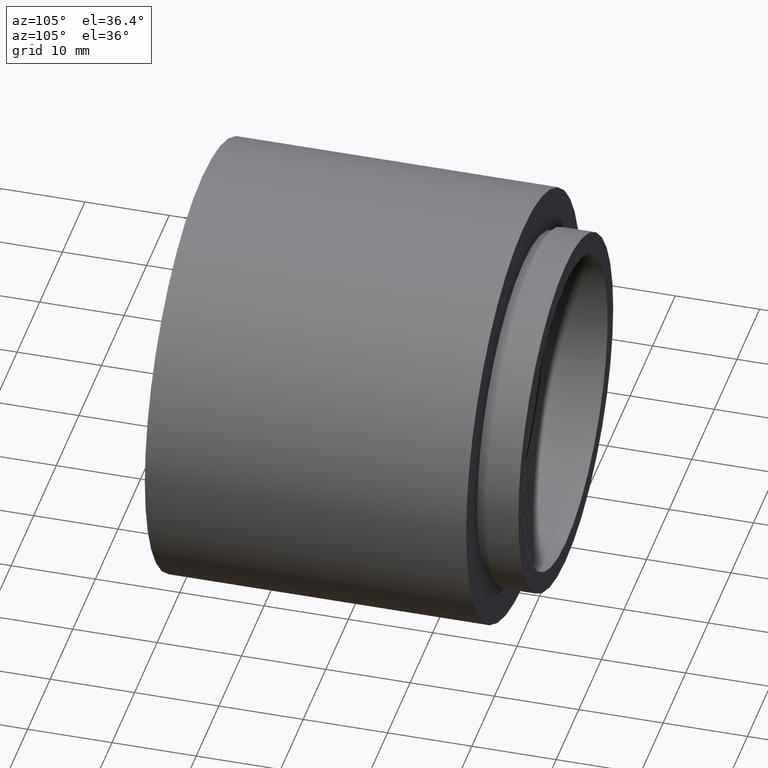
[diagram: clean part render]
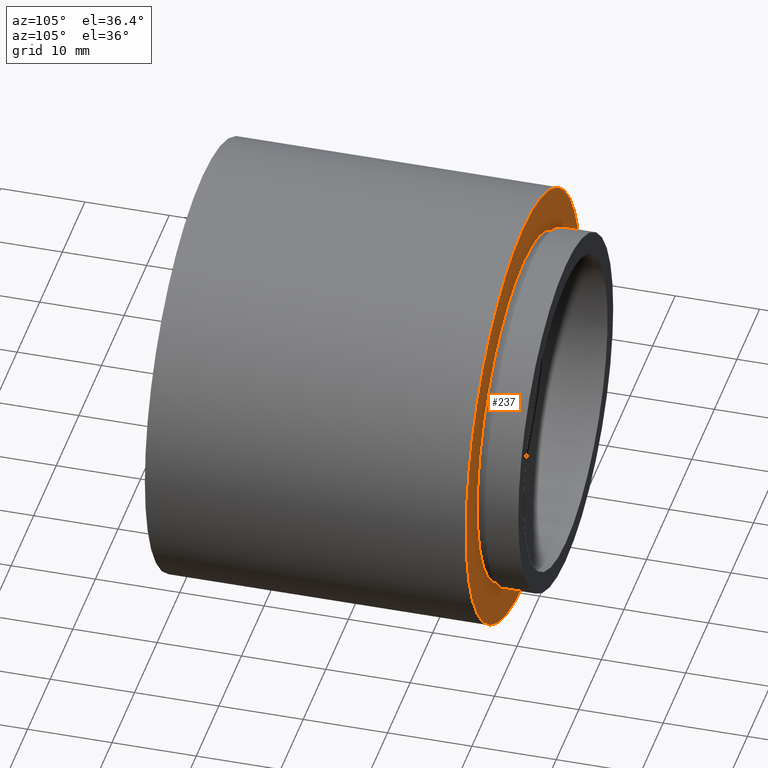
[diagram: same view with one face highlighted and labeled with its STEP entity id]
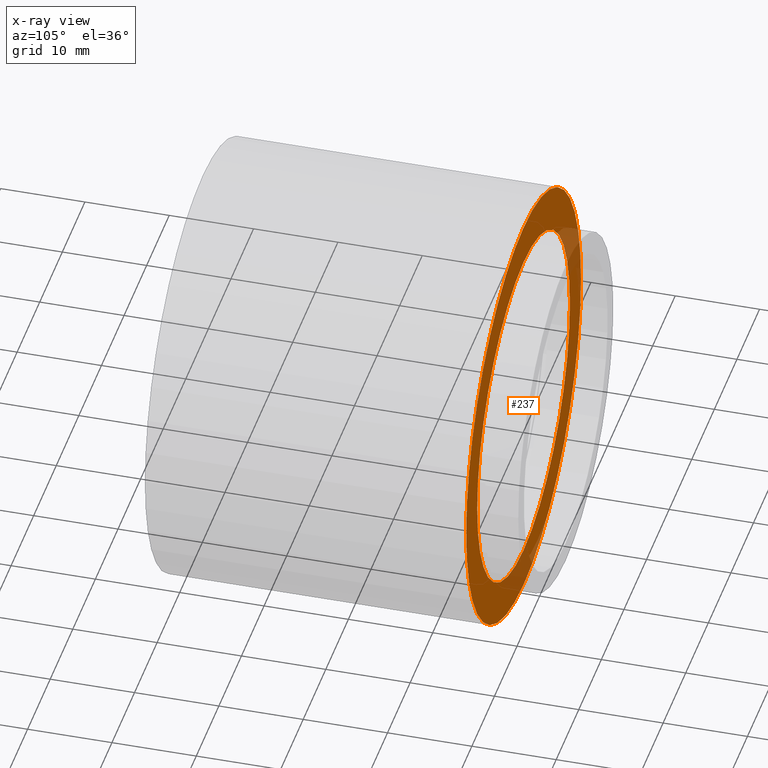
[diagram: x-ray of the same camera — body ghosted, the highlighted face saturated]
A machine part, auxiliary view. The second image highlights one B-rep face of the part: STEP entity #237.
The next image is the same camera in x-ray: the body ghosted, the highlighted face saturated — about 13% of this face is hidden behind the body in this view.
In plain terms, the highlighted planar face has unit normal (0, -1, 0).
Its self-contained STEP definition (entity closure, byte-faithful):
#26 = AXIS2_PLACEMENT_3D ( 'NONE', #496, #195, #548 ) ;
#42 = ORIENTED_EDGE ( 'NONE', *, *, #51, .T. ) ;
#48 = VERTEX_POINT ( 'NONE', #409 ) ;
#51 = EDGE_CURVE ( 'NONE', #517, #412, #57, .T. ) ;
#55 = ORIENTED_EDGE ( 'NONE', *, *, #227, .F. ) ;
#57 = CIRCLE ( 'NONE', #290, 25.40000000000001300 ) ;
#59 = CARTESIAN_POINT ( 'NONE',  ( 0.0000000000000000000, 38.09999999999998000, 0.0000000000000000000 ) ) ;
#78 = DIRECTION ( 'NONE',  ( 0.0000000000000000000, 0.0000000000000000000, 1.000000000000000000 ) ) ;
#107 = CARTESIAN_POINT ( 'NONE',  ( 20.50000000000001400, 38.09999999999998000, 0.0000000000000000000 ) ) ;
#110 = VERTEX_POINT ( 'NONE', #473 ) ;
#112 = CARTESIAN_POINT ( 'NONE',  ( 0.0000000000000000000, 38.09999999999998000, 25.40000000000001300 ) ) ;
#141 = CARTESIAN_POINT ( 'NONE',  ( 0.0000000000000000000, 38.09999999999998000, 0.0000000000000000000 ) ) ;
#153 = ORIENTED_EDGE ( 'NONE', *, *, #327, .F. ) ;
#195 = DIRECTION ( 'NONE',  ( -0.0000000000000000000, 1.000000000000000000, -0.0000000000000000000 ) ) ;
#227 = EDGE_CURVE ( 'NONE', #48, #110, #397, .T. ) ;
#228 = DIRECTION ( 'NONE',  ( -0.0000000000000000000, 1.000000000000000000, -0.0000000000000000000 ) ) ;
#237 = ADVANCED_FACE ( 'NONE', ( #481, #253 ), #388, .F. ) ;
#253 = FACE_OUTER_BOUND ( 'NONE', #312, .T. ) ;
#263 = CARTESIAN_POINT ( 'NONE',  ( 3.110602869834278800E-015, 38.09999999999998000, -25.40000000000001300 ) ) ;
#264 = AXIS2_PLACEMENT_3D ( 'NONE', #59, #603, #310 ) ;
#275 = CARTESIAN_POINT ( 'NONE',  ( 0.0000000000000000000, 38.09999999999998000, 0.0000000000000000000 ) ) ;
#290 = AXIS2_PLACEMENT_3D ( 'NONE', #275, #228, #78 ) ;
#295 = EDGE_CURVE ( 'NONE', #412, #517, #364, .T. ) ;
#304 = ORIENTED_EDGE ( 'NONE', *, *, #295, .T. ) ;
#310 = DIRECTION ( 'NONE',  ( 0.0000000000000000000, 0.0000000000000000000, 1.000000000000000000 ) ) ;
#312 = EDGE_LOOP ( 'NONE', ( #304, #42 ) ) ;
#327 = EDGE_CURVE ( 'NONE', #110, #48, #439, .T. ) ;
#343 = AXIS2_PLACEMENT_3D ( 'NONE', #141, #595, #344 ) ;
#344 = DIRECTION ( 'NONE',  ( 0.0000000000000000000, 0.0000000000000000000, 1.000000000000000000 ) ) ;
#364 = CIRCLE ( 'NONE', #26, 25.40000000000001300 ) ;
#388 = PLANE ( 'NONE',  #407 ) ;
#397 = CIRCLE ( 'NONE', #343, 20.50000000000001400 ) ;
#407 = AXIS2_PLACEMENT_3D ( 'NONE', #107, #543, #499 ) ;
#409 = CARTESIAN_POINT ( 'NONE',  ( 2.510525938252075700E-015, 38.09999999999998000, -20.50000000000001400 ) ) ;
#412 = VERTEX_POINT ( 'NONE', #112 ) ;
#439 = CIRCLE ( 'NONE', #264, 20.50000000000001400 ) ;
#473 = CARTESIAN_POINT ( 'NONE',  ( 0.0000000000000000000, 38.09999999999998000, 20.50000000000001400 ) ) ;
#481 = FACE_BOUND ( 'NONE', #509, .T. ) ;
#496 = CARTESIAN_POINT ( 'NONE',  ( 0.0000000000000000000, 38.09999999999998000, 0.0000000000000000000 ) ) ;
#499 = DIRECTION ( 'NONE',  ( 0.0000000000000000000, -0.0000000000000000000, -1.000000000000000000 ) ) ;
#509 = EDGE_LOOP ( 'NONE', ( #153, #55 ) ) ;
#517 = VERTEX_POINT ( 'NONE', #263 ) ;
#543 = DIRECTION ( 'NONE',  ( 0.0000000000000000000, -1.000000000000000000, 0.0000000000000000000 ) ) ;
#548 = DIRECTION ( 'NONE',  ( 0.0000000000000000000, 0.0000000000000000000, 1.000000000000000000 ) ) ;
#595 = DIRECTION ( 'NONE',  ( -0.0000000000000000000, 1.000000000000000000, -0.0000000000000000000 ) ) ;
#603 = DIRECTION ( 'NONE',  ( -0.0000000000000000000, 1.000000000000000000, -0.0000000000000000000 ) ) ;